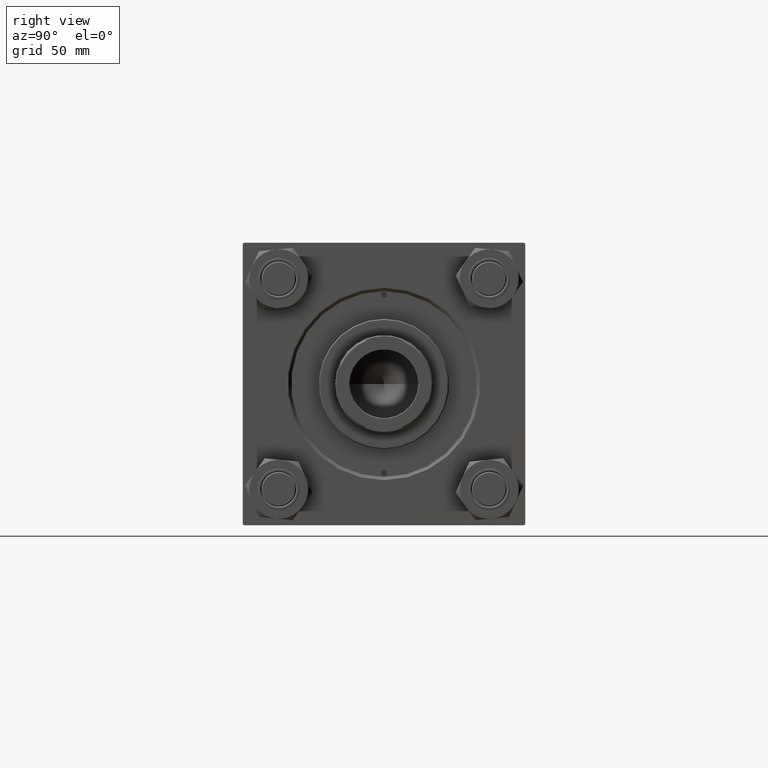
[diagram: clean part render]
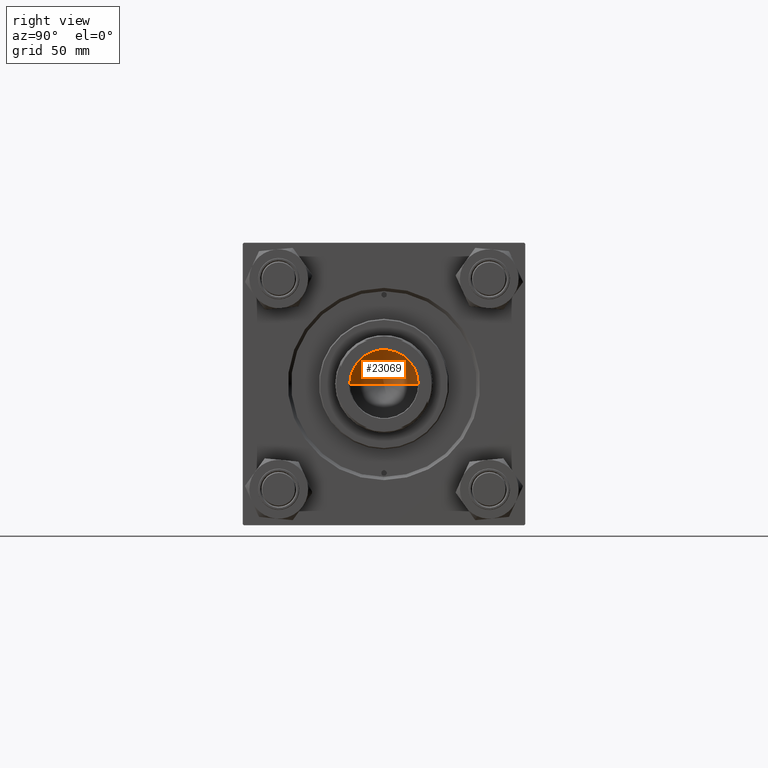
[diagram: same view with one face highlighted and labeled with its STEP entity id]
A machine part, right view. The second image highlights one B-rep face of the part: STEP entity #23069.
In plain terms, the highlighted conical surface has half-angle 59 deg.
Its self-contained STEP definition (entity closure, byte-faithful):
#605 = CARTESIAN_POINT ( 'NONE',  ( -15.74999999999998934, 1.928818708657080161E-15, 123.0000000000000142 ) ) ;
#896 = DIRECTION ( 'NONE',  ( 0.8571673007021115565, 0.000000000000000000, 0.5150380749100554878 ) ) ;
#5358 = EDGE_CURVE ( 'NONE', #30069, #41229, #22803, .T. ) ;
#5399 = AXIS2_PLACEMENT_3D ( 'NONE', #36246, #44647, #17649 ) ;
#5408 = EDGE_LOOP ( 'NONE', ( #30042, #47283, #33336 ) ) ;
#7345 = AXIS2_PLACEMENT_3D ( 'NONE', #16188, #32496, #48027 ) ;
#16188 = CARTESIAN_POINT ( 'NONE',  ( 0.000000000000000000, 0.000000000000000000, 123.0000000000000142 ) ) ;
#16687 = CARTESIAN_POINT ( 'NONE',  ( 15.74999999999998934, 0.000000000000000000, 123.0000000000000142 ) ) ;
#16895 = FACE_OUTER_BOUND ( 'NONE', #5408, .T. ) ;
#17649 = DIRECTION ( 'NONE',  ( 1.000000000000000000, 0.000000000000000000, 0.000000000000000000 ) ) ;
#20918 = EDGE_CURVE ( 'NONE', #49988, #41229, #27890, .T. ) ;
#21398 = CARTESIAN_POINT ( 'NONE',  ( 15.74999999999998934, 0.000000000000000000, 123.0000000000000142 ) ) ;
#22803 = CIRCLE ( 'NONE', #7345, 15.74999999999998934 ) ;
#23069 = ADVANCED_FACE ( 'NONE', ( #16895 ), #33078, .F. ) ;
#26164 = EDGE_CURVE ( 'NONE', #49988, #30069, #28862, .T. ) ;
#27504 = CARTESIAN_POINT ( 'NONE',  ( -1.584115414415908206E-14, 0.000000000000000000, 113.5364452503159214 ) ) ;
#27890 = LINE ( 'NONE', #16687, #37034 ) ;
#28862 = LINE ( 'NONE', #605, #46979 ) ;
#30042 = ORIENTED_EDGE ( 'NONE', *, *, #20918, .F. ) ;
#30069 = VERTEX_POINT ( 'NONE', #31915 ) ;
#31670 = DIRECTION ( 'NONE',  ( -0.8571673007021115565, 1.049727191138617710E-16, 0.5150380749100554878 ) ) ;
#31915 = CARTESIAN_POINT ( 'NONE',  ( -15.74999999999998934, 1.928818708657080161E-15, 123.0000000000000142 ) ) ;
#32496 = DIRECTION ( 'NONE',  ( -0.000000000000000000, -0.000000000000000000, 1.000000000000000000 ) ) ;
#33078 = CONICAL_SURFACE ( 'NONE', #5399, 15.74999999999998934, 1.029744258676652979 ) ;
#33336 = ORIENTED_EDGE ( 'NONE', *, *, #5358, .T. ) ;
#36246 = CARTESIAN_POINT ( 'NONE',  ( 0.000000000000000000, 0.000000000000000000, 123.0000000000000142 ) ) ;
#37034 = VECTOR ( 'NONE', #896, 1000.000000000000000 ) ;
#41229 = VERTEX_POINT ( 'NONE', #21398 ) ;
#44647 = DIRECTION ( 'NONE',  ( -0.000000000000000000, -0.000000000000000000, 1.000000000000000000 ) ) ;
#46979 = VECTOR ( 'NONE', #31670, 1000.000000000000000 ) ;
#47283 = ORIENTED_EDGE ( 'NONE', *, *, #26164, .T. ) ;
#48027 = DIRECTION ( 'NONE',  ( 1.000000000000000000, 0.000000000000000000, 0.000000000000000000 ) ) ;
#49988 = VERTEX_POINT ( 'NONE', #27504 ) ;